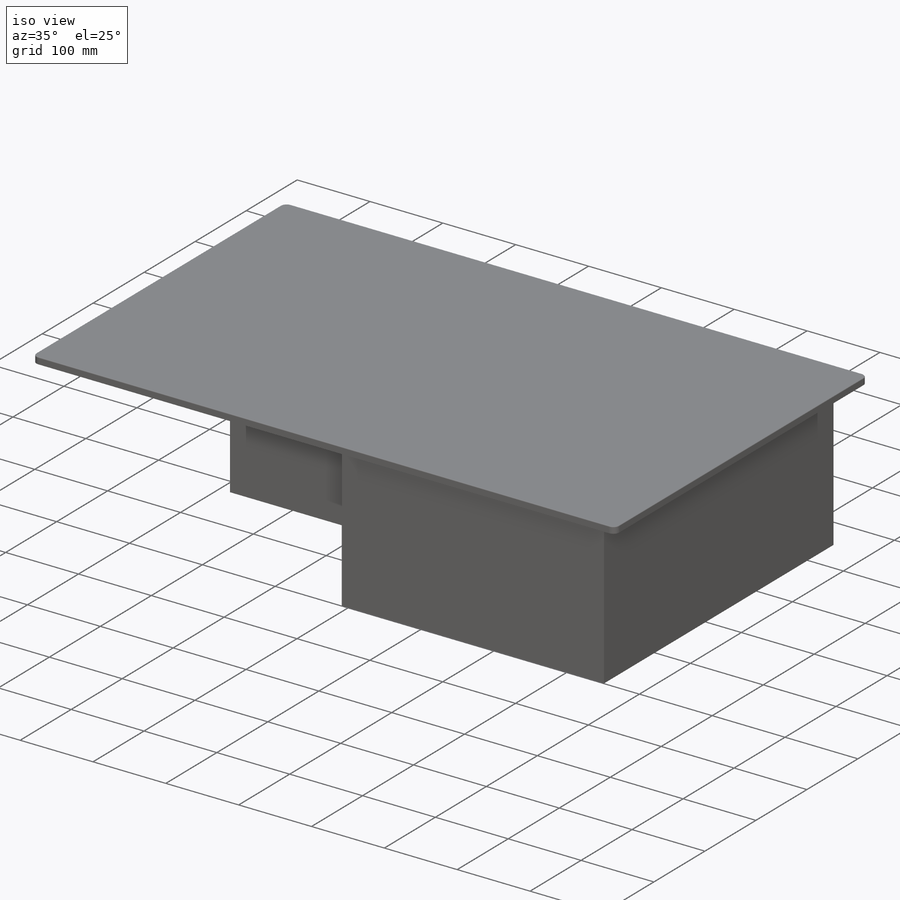
[diagram: iso view]
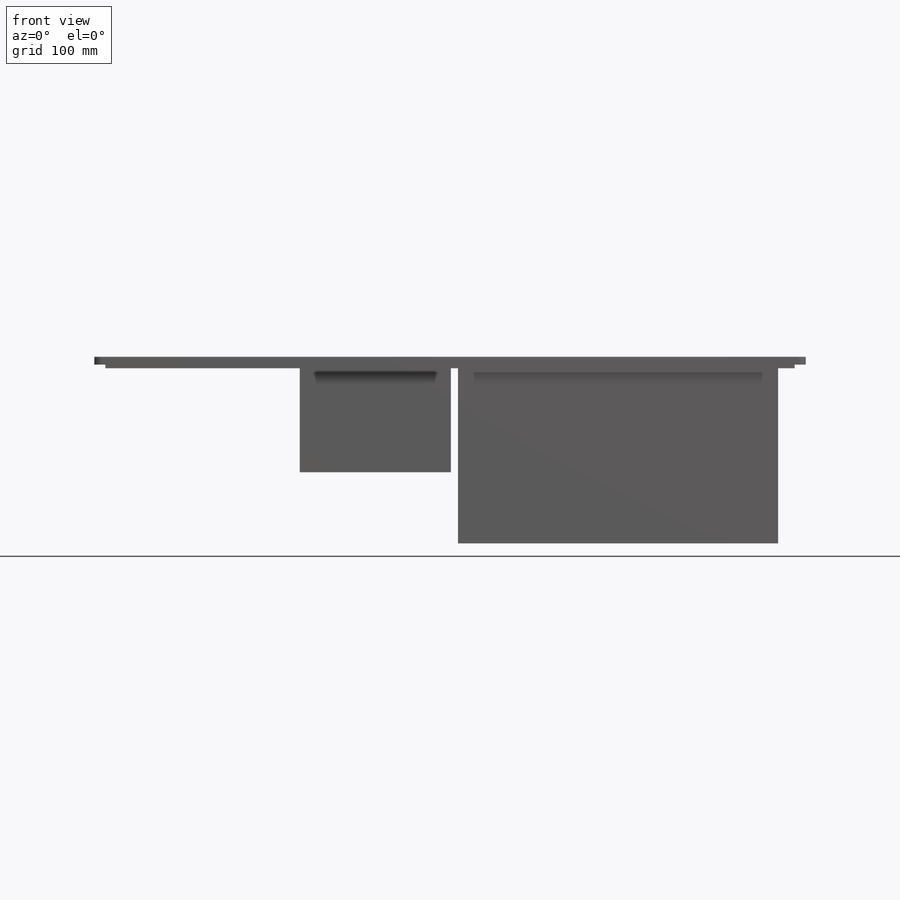
[diagram: front view]
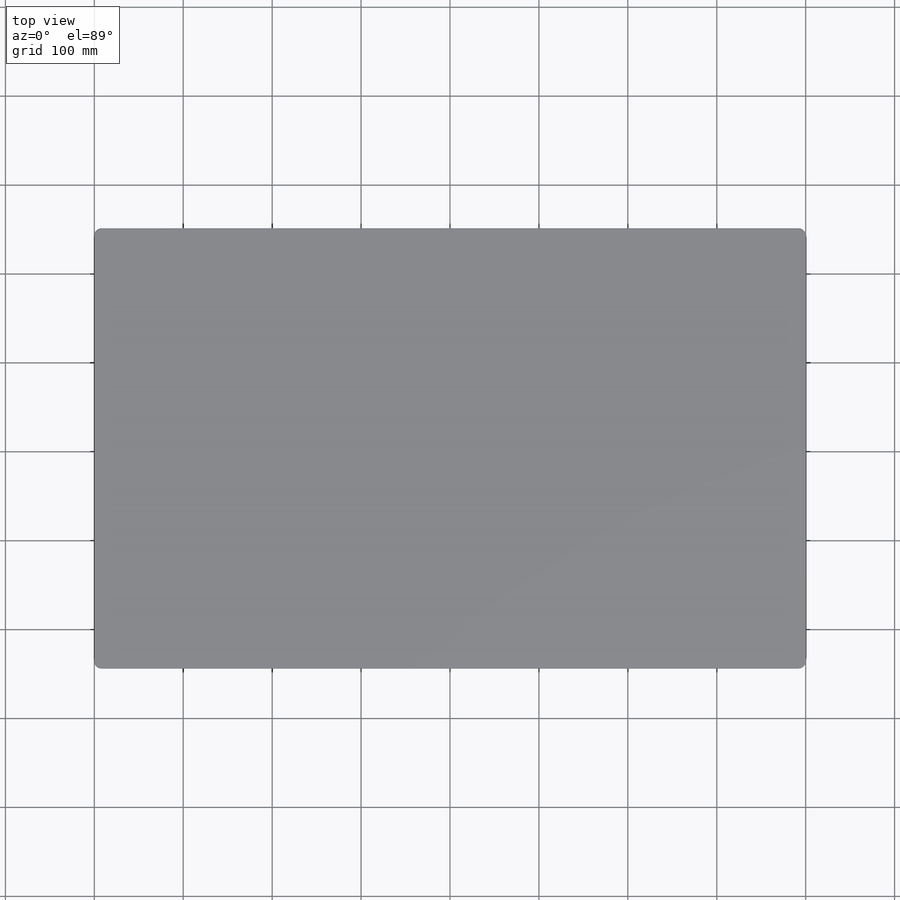
[diagram: top view]
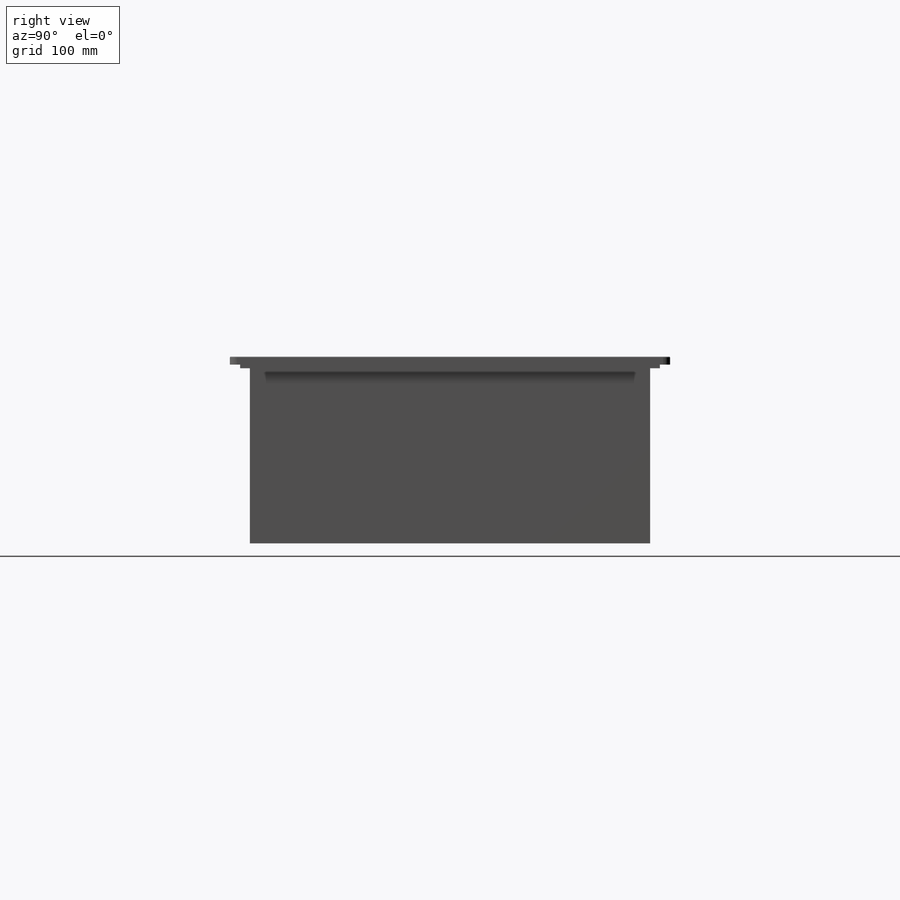
[diagram: right view]
SOLIDWORKS PART (.sldprt)
format: sldprt  version: not decoded by parser v0  size: 202,240 bytes
history: native  units: mm
features: sketch x4, extrude x4, fillet x2, material x1 (+12 scaffold rows collapsed)
feature tree (23):
  scaffold x12  (default folders/planes/origin — collapsed)
  material  "Material <not specified>"
  sketch  "Sketch1"  dims[D1=800.0mm D2=495.0mm]
  extrude  "Boss-Extrude1"  Depth=9mm
  fillet  "Fillet1"  Radius=8mm
  fillet  "Fillet2"  Radius=1mm
  sketch  "Sketch2"  dims[D1=775.0mm D2=472.0mm]
  extrude  "Boss-Extrude2"  Depth=4mm
  sketch  "Sketch3"  dims[D1=170.0mm D2=380.0mm D3=230.0mm]
  extrude  "Boss-Extrude3"  Depth=130mm
  sketch  "Sketch4"  dims[D1=450.0mm D2=360.0mm D3=30.0mm]
  extrude  "Boss-Extrude4"  Depth=210mm
decode coverage: 10 of 10 modeling features carry decoded parameters
note: suppression state not decoded; provenance and decode notes live in map.json
